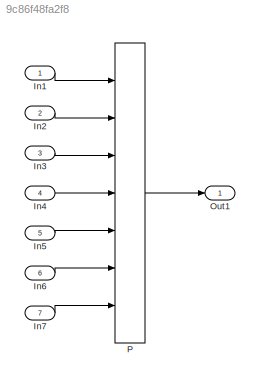
MODEL slx_9c86f48fa2f8
KIND model
CONFIG AbsTol = auto
CONFIG EnableMultiTasking = off
CONFIG FixedStep = auto
CONFIG MaxStep = auto
CONFIG MinStep = auto
CONFIG RelTol = 1e-3
CONFIG SampleTimeConstraint = Unconstrained
CONFIG Solver = FixedStepDiscrete
CONFIG SolverName = FixedStepDiscrete
CONFIG StartTime = 0.0
CONFIG StopTime = 10.0
BLOCK [Inport] In1
  IconDisplay = Port number
  OutDataTypeStr = uint8
  OutMax = 127
  OutMin = 0
  PortDimensions = 1
BLOCK [Inport] In2
  IconDisplay = Port number
  OutDataTypeStr = uint8
  OutMax = 127
  OutMin = 0
  Port = 2
BLOCK [Inport] In3
  IconDisplay = Port number
  OutDataTypeStr = uint8
  OutMax = 127
  OutMin = 0
  Port = 3
BLOCK [Inport] In4
  IconDisplay = Port number
  OutDataTypeStr = uint8
  OutMax = 127
  OutMin = 0
  Port = 4
BLOCK [Inport] In5
  IconDisplay = Port number
  OutDataTypeStr = uint8
  OutMax = 127
  OutMin = 0
  Port = 5
BLOCK [Inport] In6
  IconDisplay = Port number
  OutDataTypeStr = uint8
  OutMax = 127
  OutMin = 0
  Port = 6
BLOCK [Inport] In7
  IconDisplay = Port number
  OutDataTypeStr = uint8
  OutMax = 127
  OutMin = 0
  Port = 7
BLOCK [Outport] Out1
  IconDisplay = Port number
BLOCK [Lookup_n-D] P
  BreakpointsForDimension1 = [63.9654193163996;73.0578880846683]
  BreakpointsForDimension1DataTypeStr = uint16
  BreakpointsForDimension2 = [15.7308247792324;65.1500336115267;69.9525901439905;96.166286485537;103.346190842451]
  BreakpointsForDimension2DataTypeStr = uint16
  BreakpointsForDimension3 = [4.34102484866711;23.4195110124267;36.471437864466]
  BreakpointsForDimension3DataTypeStr = uint16
  BreakpointsForDimension4 = [40.8032410554062;57.8366289718747]
  BreakpointsForDimension4DataTypeStr = uint16
  BreakpointsForDimension5 = [5.86615162815535;46.4557959549338;53.0735865108056]
  BreakpointsForDimension5DataTypeStr = uint16
  BreakpointsForDimension6 = [31.8007410978587;37.4328396737041;56.968506493087;89.9665888221587]
  BreakpointsForDimension6DataTypeStr = uint16
  BreakpointsForDimension7 = [9.57919393811142;42.6630668457541;49.4350203254805]
  BreakpointsForDimension7DataTypeStr = uint16
  ExtrapMethod = Clip
  InternalRulePriority = Speed
  InterpMethod = Flat
  NumberOfTableDimensions = 7
  OutDataTypeStr = uint16
  Ports = [7, 1]
  SaturateOnIntegerOverflow = on
  Table = reshape(repmat([4 5 6 7 8;16 19 20 21 22;10 18 23 24 25],18,8),[2,5,3,2,3,4,3])
  TableDataTypeStr = single
LINE In1:1 -> P:1
LINE In2:1 -> P:2
LINE In3:1 -> P:3
LINE In4:1 -> P:4
LINE In5:1 -> P:5
LINE In6:1 -> P:6
LINE In7:1 -> P:7
LINE P:1 -> Out1:1
